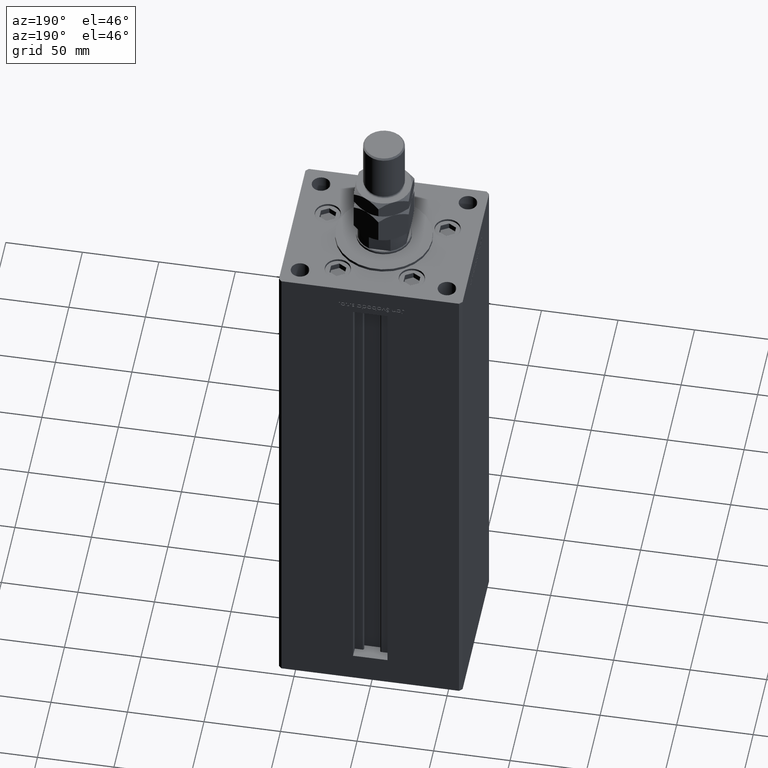
[diagram: clean part render]
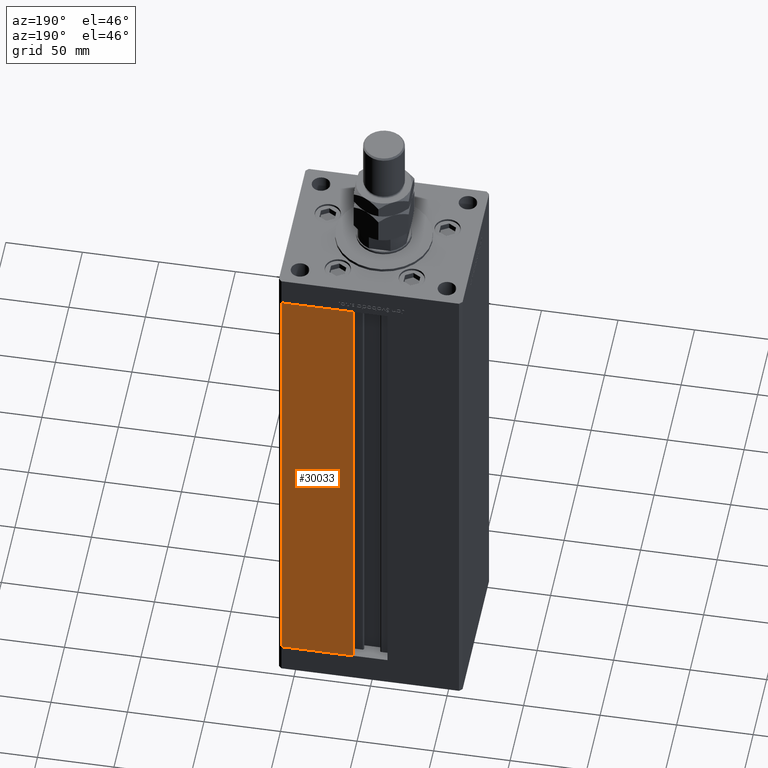
[diagram: same view with one face highlighted and labeled with its STEP entity id]
A machine part, auxiliary view. The second image highlights one B-rep face of the part: STEP entity #30033.
In plain terms, the highlighted planar face has unit normal (-0, -1, 0).
Its self-contained STEP definition (entity closure, byte-faithful):
#1738 = EDGE_CURVE ( 'NONE', #10293, #4302, #29128, .T. ) ;
#2977 = DIRECTION ( 'NONE',  ( 1.000000000000000000, -1.484255380514915670E-16, 0.000000000000000000 ) ) ;
#4302 = VERTEX_POINT ( 'NONE', #34562 ) ;
#4507 = VERTEX_POINT ( 'NONE', #21457 ) ;
#5658 = DIRECTION ( 'NONE',  ( -1.000000000000000000, 1.484255380514915423E-16, 0.000000000000000000 ) ) ;
#7848 = DIRECTION ( 'NONE',  ( -0.000000000000000000, -0.000000000000000000, 1.000000000000000000 ) ) ;
#9009 = ORIENTED_EDGE ( 'NONE', *, *, #35187, .T. ) ;
#10293 = VERTEX_POINT ( 'NONE', #46326 ) ;
#12053 = DIRECTION ( 'NONE',  ( 1.000000000000000000, 0.000000000000000000, 0.000000000000000000 ) ) ;
#12511 = AXIS2_PLACEMENT_3D ( 'NONE', #52710, #24175, #2977 ) ;
#13572 = LINE ( 'NONE', #38531, #23999 ) ;
#15972 = ORIENTED_EDGE ( 'NONE', *, *, #1738, .T. ) ;
#17883 = CARTESIAN_POINT ( 'NONE',  ( 11.25000000000000178, 51.00000000000000000, 0.000000000000000000 ) ) ;
#19962 = VERTEX_POINT ( 'NONE', #17883 ) ;
#21457 = CARTESIAN_POINT ( 'NONE',  ( 57.99999999999999289, 51.00000000000000711, 0.000000000000000000 ) ) ;
#21947 = CARTESIAN_POINT ( 'NONE',  ( 57.99999999999999289, 51.00000000000000711, 318.5000000000000000 ) ) ;
#23999 = VECTOR ( 'NONE', #5658, 1000.000000000000000 ) ;
#24175 = DIRECTION ( 'NONE',  ( -1.484255380514915670E-16, -1.000000000000000000, 0.000000000000000000 ) ) ;
#24738 = VECTOR ( 'NONE', #7848, 1000.000000000000000 ) ;
#24763 = ORIENTED_EDGE ( 'NONE', *, *, #38002, .T. ) ;
#29128 = LINE ( 'NONE', #45704, #32753 ) ;
#30033 = ADVANCED_FACE ( 'NONE', ( #48349 ), #36123, .F. ) ;
#32753 = VECTOR ( 'NONE', #12053, 1000.000000000000000 ) ;
#34562 = CARTESIAN_POINT ( 'NONE',  ( 57.99999999999999289, 51.00000000000000711, 318.5000000000000000 ) ) ;
#35187 = EDGE_CURVE ( 'NONE', #19962, #10293, #40978, .T. ) ;
#36123 = PLANE ( 'NONE',  #12511 ) ;
#38002 = EDGE_CURVE ( 'NONE', #4507, #19962, #13572, .T. ) ;
#38531 = CARTESIAN_POINT ( 'NONE',  ( -11.25000000000000178, 51.00000000000000000, 0.000000000000000000 ) ) ;
#39309 = LINE ( 'NONE', #21947, #47713 ) ;
#40978 = LINE ( 'NONE', #41239, #24738 ) ;
#41239 = CARTESIAN_POINT ( 'NONE',  ( 11.25000000000000178, 51.00000000000000000, 0.000000000000000000 ) ) ;
#45704 = CARTESIAN_POINT ( 'NONE',  ( -11.25000000000000178, 51.00000000000000000, 318.5000000000000000 ) ) ;
#46326 = CARTESIAN_POINT ( 'NONE',  ( 11.24999999999999467, 51.00000000000000000, 318.5000000000000000 ) ) ;
#47525 = ORIENTED_EDGE ( 'NONE', *, *, #52999, .T. ) ;
#47713 = VECTOR ( 'NONE', #48006, 1000.000000000000000 ) ;
#48006 = DIRECTION ( 'NONE',  ( -0.000000000000000000, -0.000000000000000000, -1.000000000000000000 ) ) ;
#48349 = FACE_OUTER_BOUND ( 'NONE', #51900, .T. ) ;
#51900 = EDGE_LOOP ( 'NONE', ( #24763, #9009, #15972, #47525 ) ) ;
#52710 = CARTESIAN_POINT ( 'NONE',  ( -11.25000000000000178, 51.00000000000000000, 318.5000000000000000 ) ) ;
#52999 = EDGE_CURVE ( 'NONE', #4302, #4507, #39309, .T. ) ;